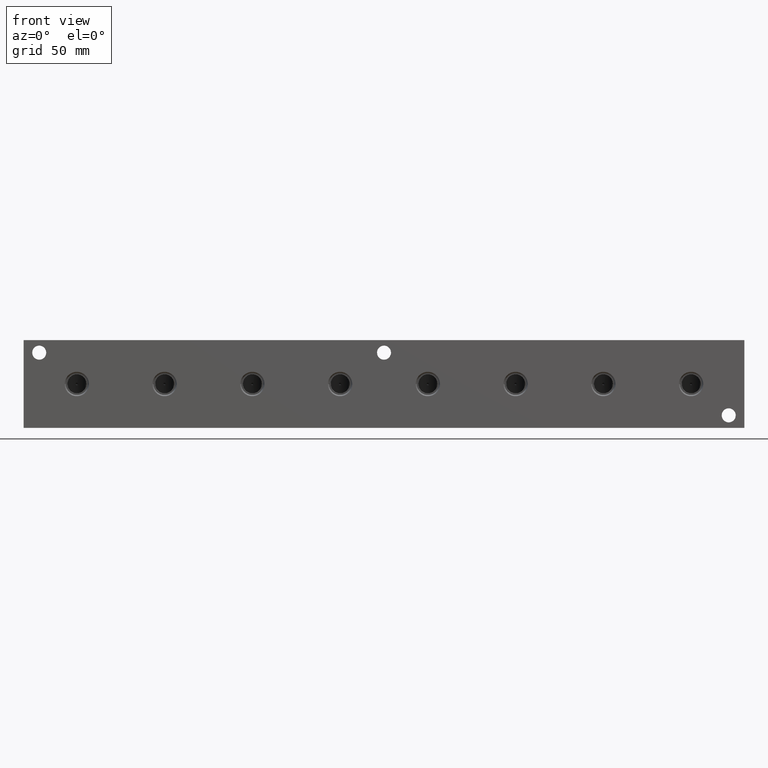
[diagram: clean part render]
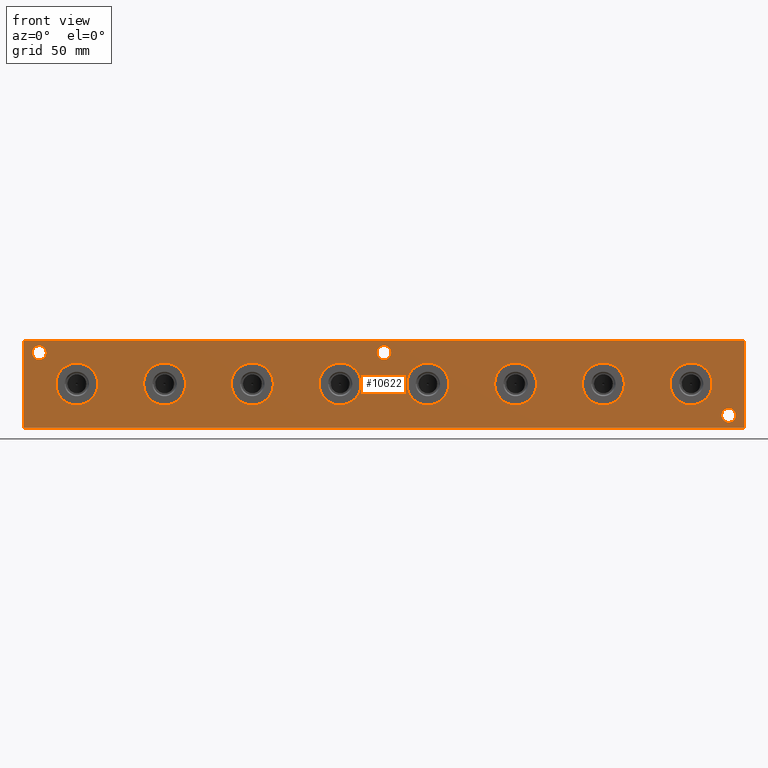
[diagram: same view with one face highlighted and labeled with its STEP entity id]
A machine part, front view. The second image highlights one B-rep face of the part: STEP entity #10622.
In plain terms, the highlighted planar face has unit normal (0, -1, 0).
Its self-contained STEP definition (entity closure, byte-faithful):
#527=CIRCLE('',#11295,3.5687);
#528=CIRCLE('',#11296,3.5687);
#530=CIRCLE('',#11304,3.5687);
#531=CIRCLE('',#11305,3.5687);
#533=CIRCLE('',#11313,3.5687);
#534=CIRCLE('',#11314,3.5687);
#605=CIRCLE('',#11447,10.6426);
#606=CIRCLE('',#11448,10.6426);
#610=CIRCLE('',#11456,10.6426);
#611=CIRCLE('',#11457,10.6426);
#615=CIRCLE('',#11465,10.6426);
#616=CIRCLE('',#11466,10.6426);
#620=CIRCLE('',#11474,10.6426);
#621=CIRCLE('',#11475,10.6426);
#625=CIRCLE('',#11483,10.6426);
#626=CIRCLE('',#11484,10.6426);
#630=CIRCLE('',#11492,10.6426);
#631=CIRCLE('',#11493,10.6426);
#635=CIRCLE('',#11501,10.6426);
#636=CIRCLE('',#11502,10.6426);
#640=CIRCLE('',#11510,10.6426);
#641=CIRCLE('',#11511,10.6426);
#755=FACE_BOUND('',#2276,.T.);
#756=FACE_BOUND('',#2277,.T.);
#757=FACE_BOUND('',#2278,.T.);
#758=FACE_BOUND('',#2279,.T.);
#759=FACE_BOUND('',#2280,.T.);
#760=FACE_BOUND('',#2281,.T.);
#761=FACE_BOUND('',#2282,.T.);
#762=FACE_BOUND('',#2283,.T.);
#763=FACE_BOUND('',#2284,.T.);
#764=FACE_BOUND('',#2285,.T.);
#765=FACE_BOUND('',#2286,.T.);
#1037=PLANE('',#11542);
#1607=FACE_OUTER_BOUND('',#2275,.T.);
#2275=EDGE_LOOP('',(#9612,#9613,#9614,#9615));
#2276=EDGE_LOOP('',(#9616,#9617));
#2277=EDGE_LOOP('',(#9618,#9619));
#2278=EDGE_LOOP('',(#9620,#9621));
#2279=EDGE_LOOP('',(#9622,#9623));
#2280=EDGE_LOOP('',(#9624,#9625));
#2281=EDGE_LOOP('',(#9626,#9627));
#2282=EDGE_LOOP('',(#9628,#9629));
#2283=EDGE_LOOP('',(#9630,#9631));
#2284=EDGE_LOOP('',(#9632,#9633));
#2285=EDGE_LOOP('',(#9634,#9635));
#2286=EDGE_LOOP('',(#9636,#9637));
#2561=LINE('',#16212,#3399);
#3131=LINE('',#18897,#3969);
#3136=LINE('',#18906,#3974);
#3137=LINE('',#18908,#3975);
#3399=VECTOR('',#11946,10.);
#3969=VECTOR('',#14180,10.);
#3974=VECTOR('',#14189,10.);
#3975=VECTOR('',#14192,10.);
#4488=VERTEX_POINT('',#16210);
#4489=VERTEX_POINT('',#16211);
#5045=VERTEX_POINT('',#18433);
#5046=VERTEX_POINT('',#18434);
#5050=VERTEX_POINT('',#18449);
#5051=VERTEX_POINT('',#18450);
#5055=VERTEX_POINT('',#18465);
#5056=VERTEX_POINT('',#18466);
#5128=VERTEX_POINT('',#18710);
#5129=VERTEX_POINT('',#18711);
#5134=VERTEX_POINT('',#18728);
#5135=VERTEX_POINT('',#18729);
#5140=VERTEX_POINT('',#18746);
#5141=VERTEX_POINT('',#18747);
#5146=VERTEX_POINT('',#18764);
#5147=VERTEX_POINT('',#18765);
#5152=VERTEX_POINT('',#18782);
#5153=VERTEX_POINT('',#18783);
#5158=VERTEX_POINT('',#18800);
#5159=VERTEX_POINT('',#18801);
#5164=VERTEX_POINT('',#18818);
#5165=VERTEX_POINT('',#18819);
#5170=VERTEX_POINT('',#18836);
#5171=VERTEX_POINT('',#18837);
#5188=VERTEX_POINT('',#18895);
#5190=VERTEX_POINT('',#18904);
#5626=EDGE_CURVE('',#4488,#4489,#2561,.T.);
#6458=EDGE_CURVE('',#5045,#5046,#527,.T.);
#6459=EDGE_CURVE('',#5046,#5045,#528,.T.);
#6467=EDGE_CURVE('',#5050,#5051,#530,.T.);
#6468=EDGE_CURVE('',#5051,#5050,#531,.T.);
#6476=EDGE_CURVE('',#5055,#5056,#533,.T.);
#6477=EDGE_CURVE('',#5056,#5055,#534,.T.);
#6590=EDGE_CURVE('',#5128,#5129,#605,.T.);
#6591=EDGE_CURVE('',#5129,#5128,#606,.T.);
#6598=EDGE_CURVE('',#5134,#5135,#610,.T.);
#6599=EDGE_CURVE('',#5135,#5134,#611,.T.);
#6606=EDGE_CURVE('',#5140,#5141,#615,.T.);
#6607=EDGE_CURVE('',#5141,#5140,#616,.T.);
#6614=EDGE_CURVE('',#5146,#5147,#620,.T.);
#6615=EDGE_CURVE('',#5147,#5146,#621,.T.);
#6622=EDGE_CURVE('',#5152,#5153,#625,.T.);
#6623=EDGE_CURVE('',#5153,#5152,#626,.T.);
#6630=EDGE_CURVE('',#5158,#5159,#630,.T.);
#6631=EDGE_CURVE('',#5159,#5158,#631,.T.);
#6638=EDGE_CURVE('',#5164,#5165,#635,.T.);
#6639=EDGE_CURVE('',#5165,#5164,#636,.T.);
#6646=EDGE_CURVE('',#5170,#5171,#640,.T.);
#6647=EDGE_CURVE('',#5171,#5170,#641,.T.);
#6675=EDGE_CURVE('',#5188,#4488,#3131,.T.);
#6680=EDGE_CURVE('',#5190,#4489,#3136,.T.);
#6681=EDGE_CURVE('',#5188,#5190,#3137,.T.);
#9612=ORIENTED_EDGE('',*,*,#6681,.T.);
#9613=ORIENTED_EDGE('',*,*,#6680,.T.);
#9614=ORIENTED_EDGE('',*,*,#5626,.F.);
#9615=ORIENTED_EDGE('',*,*,#6675,.F.);
#9616=ORIENTED_EDGE('',*,*,#6458,.T.);
#9617=ORIENTED_EDGE('',*,*,#6459,.T.);
#9618=ORIENTED_EDGE('',*,*,#6467,.T.);
#9619=ORIENTED_EDGE('',*,*,#6468,.T.);
#9620=ORIENTED_EDGE('',*,*,#6476,.T.);
#9621=ORIENTED_EDGE('',*,*,#6477,.T.);
#9622=ORIENTED_EDGE('',*,*,#6590,.T.);
#9623=ORIENTED_EDGE('',*,*,#6591,.T.);
#9624=ORIENTED_EDGE('',*,*,#6598,.T.);
#9625=ORIENTED_EDGE('',*,*,#6599,.T.);
#9626=ORIENTED_EDGE('',*,*,#6606,.T.);
#9627=ORIENTED_EDGE('',*,*,#6607,.T.);
#9628=ORIENTED_EDGE('',*,*,#6614,.T.);
#9629=ORIENTED_EDGE('',*,*,#6615,.T.);
#9630=ORIENTED_EDGE('',*,*,#6622,.T.);
#9631=ORIENTED_EDGE('',*,*,#6623,.T.);
#9632=ORIENTED_EDGE('',*,*,#6630,.T.);
#9633=ORIENTED_EDGE('',*,*,#6631,.T.);
#9634=ORIENTED_EDGE('',*,*,#6638,.T.);
#9635=ORIENTED_EDGE('',*,*,#6639,.T.);
#9636=ORIENTED_EDGE('',*,*,#6646,.T.);
#9637=ORIENTED_EDGE('',*,*,#6647,.T.);
#10622=ADVANCED_FACE('',(#1607,#755,#756,#757,#758,#759,#760,#761,#762,
#763,#764,#765),#1037,.T.);
#11295=AXIS2_PLACEMENT_3D('',#18435,#13615,#13616);
#11296=AXIS2_PLACEMENT_3D('',#18436,#13617,#13618);
#11304=AXIS2_PLACEMENT_3D('',#18451,#13635,#13636);
#11305=AXIS2_PLACEMENT_3D('',#18452,#13637,#13638);
#11313=AXIS2_PLACEMENT_3D('',#18467,#13655,#13656);
#11314=AXIS2_PLACEMENT_3D('',#18468,#13657,#13658);
#11447=AXIS2_PLACEMENT_3D('',#18712,#13961,#13962);
#11448=AXIS2_PLACEMENT_3D('',#18713,#13963,#13964);
#11456=AXIS2_PLACEMENT_3D('',#18730,#13982,#13983);
#11457=AXIS2_PLACEMENT_3D('',#18731,#13984,#13985);
#11465=AXIS2_PLACEMENT_3D('',#18748,#14003,#14004);
#11466=AXIS2_PLACEMENT_3D('',#18749,#14005,#14006);
#11474=AXIS2_PLACEMENT_3D('',#18766,#14024,#14025);
#11475=AXIS2_PLACEMENT_3D('',#18767,#14026,#14027);
#11483=AXIS2_PLACEMENT_3D('',#18784,#14045,#14046);
#11484=AXIS2_PLACEMENT_3D('',#18785,#14047,#14048);
#11492=AXIS2_PLACEMENT_3D('',#18802,#14066,#14067);
#11493=AXIS2_PLACEMENT_3D('',#18803,#14068,#14069);
#11501=AXIS2_PLACEMENT_3D('',#18820,#14087,#14088);
#11502=AXIS2_PLACEMENT_3D('',#18821,#14089,#14090);
#11510=AXIS2_PLACEMENT_3D('',#18838,#14108,#14109);
#11511=AXIS2_PLACEMENT_3D('',#18839,#14110,#14111);
#11542=AXIS2_PLACEMENT_3D('',#18907,#14190,#14191);
#11946=DIRECTION('',(1.,0.,0.));
#13615=DIRECTION('center_axis',(0.,1.,0.));
#13616=DIRECTION('ref_axis',(1.,0.,0.));
#13617=DIRECTION('center_axis',(0.,1.,0.));
#13618=DIRECTION('ref_axis',(1.,0.,0.));
#13635=DIRECTION('center_axis',(0.,1.,0.));
#13636=DIRECTION('ref_axis',(1.,0.,0.));
#13637=DIRECTION('center_axis',(0.,1.,0.));
#13638=DIRECTION('ref_axis',(1.,0.,0.));
#13655=DIRECTION('center_axis',(0.,1.,0.));
#13656=DIRECTION('ref_axis',(1.,0.,0.));
#13657=DIRECTION('center_axis',(0.,1.,0.));
#13658=DIRECTION('ref_axis',(1.,0.,0.));
#13961=DIRECTION('center_axis',(0.,1.,0.));
#13962=DIRECTION('ref_axis',(1.,0.,0.));
#13963=DIRECTION('center_axis',(0.,1.,0.));
#13964=DIRECTION('ref_axis',(1.,0.,0.));
#13982=DIRECTION('center_axis',(0.,1.,0.));
#13983=DIRECTION('ref_axis',(1.,0.,0.));
#13984=DIRECTION('center_axis',(0.,1.,0.));
#13985=DIRECTION('ref_axis',(1.,0.,0.));
#14003=DIRECTION('center_axis',(0.,1.,0.));
#14004=DIRECTION('ref_axis',(1.,0.,0.));
#14005=DIRECTION('center_axis',(0.,1.,0.));
#14006=DIRECTION('ref_axis',(1.,0.,0.));
#14024=DIRECTION('center_axis',(0.,1.,0.));
#14025=DIRECTION('ref_axis',(1.,0.,0.));
#14026=DIRECTION('center_axis',(0.,1.,0.));
#14027=DIRECTION('ref_axis',(1.,0.,0.));
#14045=DIRECTION('center_axis',(0.,1.,0.));
#14046=DIRECTION('ref_axis',(1.,0.,0.));
#14047=DIRECTION('center_axis',(0.,1.,0.));
#14048=DIRECTION('ref_axis',(1.,0.,0.));
#14066=DIRECTION('center_axis',(0.,1.,0.));
#14067=DIRECTION('ref_axis',(1.,0.,0.));
#14068=DIRECTION('center_axis',(0.,1.,0.));
#14069=DIRECTION('ref_axis',(1.,0.,0.));
#14087=DIRECTION('center_axis',(0.,1.,0.));
#14088=DIRECTION('ref_axis',(1.,0.,0.));
#14089=DIRECTION('center_axis',(0.,1.,0.));
#14090=DIRECTION('ref_axis',(1.,0.,0.));
#14108=DIRECTION('center_axis',(0.,1.,0.));
#14109=DIRECTION('ref_axis',(1.,0.,0.));
#14110=DIRECTION('center_axis',(0.,1.,0.));
#14111=DIRECTION('ref_axis',(1.,0.,0.));
#14180=DIRECTION('',(0.,0.,1.));
#14189=DIRECTION('',(0.,0.,1.));
#14190=DIRECTION('center_axis',(0.,-1.,0.));
#14191=DIRECTION('ref_axis',(1.,0.,0.));
#14192=DIRECTION('',(1.,0.,0.));
#16210=CARTESIAN_POINT('',(0.,0.,44.45));
#16211=CARTESIAN_POINT('',(365.125,0.,44.45));
#16212=CARTESIAN_POINT('',(0.,0.,44.45));
#18433=CARTESIAN_POINT('',(360.7435,0.,6.35));
#18434=CARTESIAN_POINT('',(353.6061,0.,6.35));
#18435=CARTESIAN_POINT('Origin',(357.1748,0.,6.35));
#18436=CARTESIAN_POINT('Origin',(357.1748,0.,6.35));
#18449=CARTESIAN_POINT('',(11.4935,0.,38.1));
#18450=CARTESIAN_POINT('',(4.3561,0.,38.1));
#18451=CARTESIAN_POINT('Origin',(7.9248,0.,38.1));
#18452=CARTESIAN_POINT('Origin',(7.9248,0.,38.1));
#18465=CARTESIAN_POINT('',(186.1439,0.,38.1));
#18466=CARTESIAN_POINT('',(179.0065,0.,38.1));
#18467=CARTESIAN_POINT('Origin',(182.5752,0.,38.1));
#18468=CARTESIAN_POINT('Origin',(182.5752,0.,38.1));
#18710=CARTESIAN_POINT('',(126.5174,0.,22.225));
#18711=CARTESIAN_POINT('',(105.2322,0.,22.225));
#18712=CARTESIAN_POINT('Origin',(115.8748,0.,22.225));
#18713=CARTESIAN_POINT('Origin',(115.8748,0.,22.225));
#18728=CARTESIAN_POINT('',(215.4174,0.,22.225));
#18729=CARTESIAN_POINT('',(194.1322,0.,22.225));
#18730=CARTESIAN_POINT('Origin',(204.7748,0.,22.225));
#18731=CARTESIAN_POINT('Origin',(204.7748,0.,22.225));
#18746=CARTESIAN_POINT('',(348.7674,0.,22.225));
#18747=CARTESIAN_POINT('',(327.4822,0.,22.225));
#18748=CARTESIAN_POINT('Origin',(338.1248,0.,22.225));
#18749=CARTESIAN_POINT('Origin',(338.1248,0.,22.225));
#18764=CARTESIAN_POINT('',(37.6174,0.,22.225));
#18765=CARTESIAN_POINT('',(16.3322,0.,22.225));
#18766=CARTESIAN_POINT('Origin',(26.9748,0.,22.225));
#18767=CARTESIAN_POINT('Origin',(26.9748,0.,22.225));
#18782=CARTESIAN_POINT('',(82.0674,0.,22.225));
#18783=CARTESIAN_POINT('',(60.7822,0.,22.225));
#18784=CARTESIAN_POINT('Origin',(71.4248,0.,22.225));
#18785=CARTESIAN_POINT('Origin',(71.4248,0.,22.225));
#18800=CARTESIAN_POINT('',(170.9674,0.,22.225));
#18801=CARTESIAN_POINT('',(149.6822,0.,22.225));
#18802=CARTESIAN_POINT('Origin',(160.3248,0.,22.225));
#18803=CARTESIAN_POINT('Origin',(160.3248,0.,22.225));
#18818=CARTESIAN_POINT('',(304.3174,0.,22.225));
#18819=CARTESIAN_POINT('',(283.0322,0.,22.225));
#18820=CARTESIAN_POINT('Origin',(293.6748,0.,22.225));
#18821=CARTESIAN_POINT('Origin',(293.6748,0.,22.225));
#18836=CARTESIAN_POINT('',(259.8674,0.,22.225));
#18837=CARTESIAN_POINT('',(238.5822,0.,22.225));
#18838=CARTESIAN_POINT('Origin',(249.2248,0.,22.225));
#18839=CARTESIAN_POINT('Origin',(249.2248,0.,22.225));
#18895=CARTESIAN_POINT('',(0.,0.,0.));
#18897=CARTESIAN_POINT('',(0.,0.,0.));
#18904=CARTESIAN_POINT('',(365.125,0.,0.));
#18906=CARTESIAN_POINT('',(365.125,0.,0.));
#18907=CARTESIAN_POINT('Origin',(0.,0.,0.));
#18908=CARTESIAN_POINT('',(0.,0.,0.));